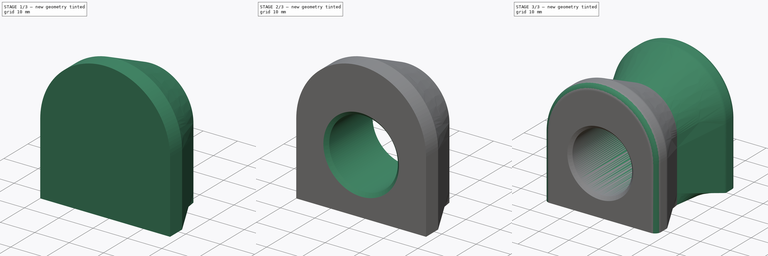
[diagram: build sequence overview — one tinted view per stage of 3, left to right]
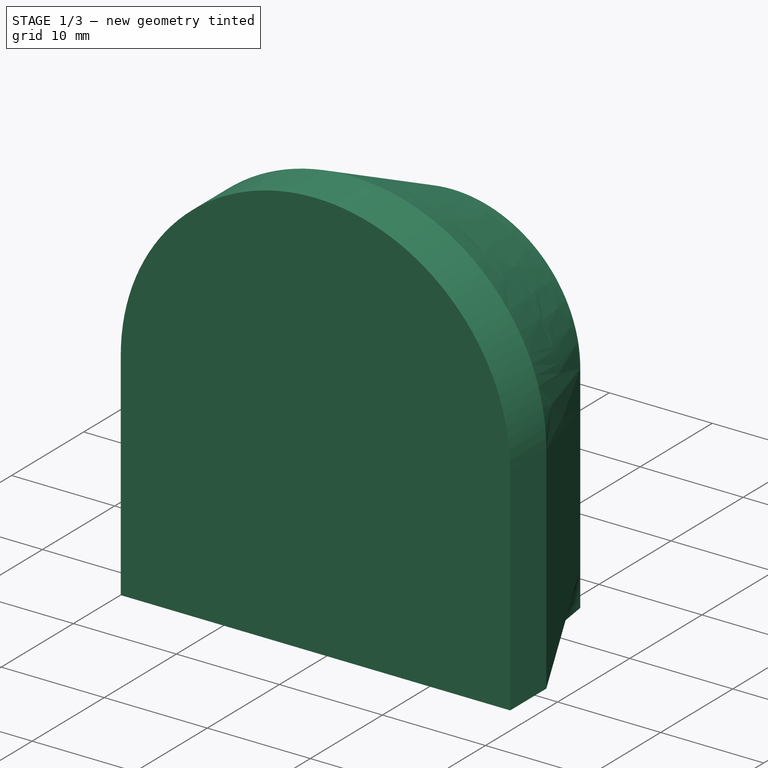
[diagram: stage 1 of 3 — iso view after this stage's code; geometry added in this stage tinted green]
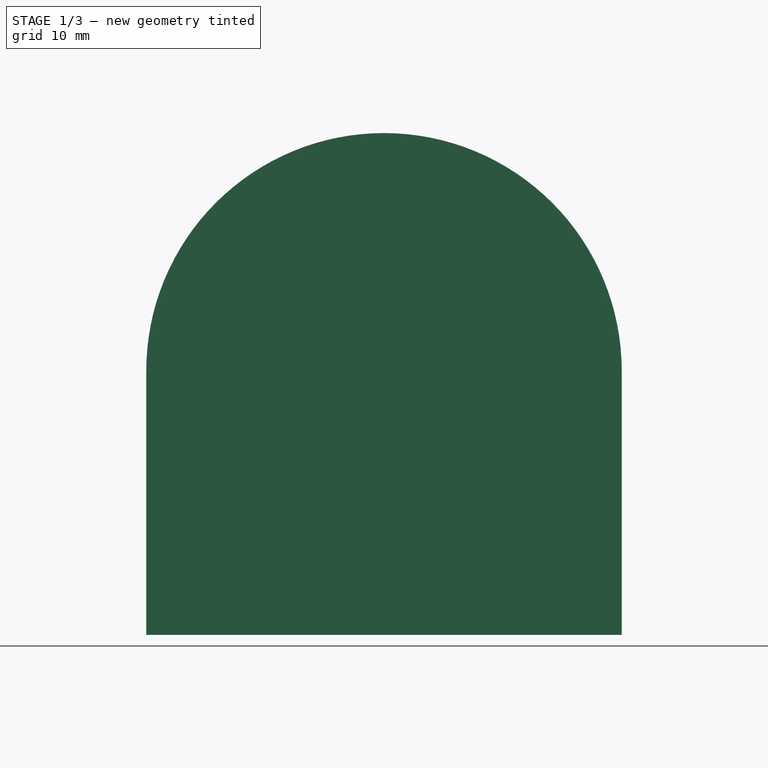
[diagram: stage 1 of 3 — front view after this stage's code; geometry added in this stage tinted green]
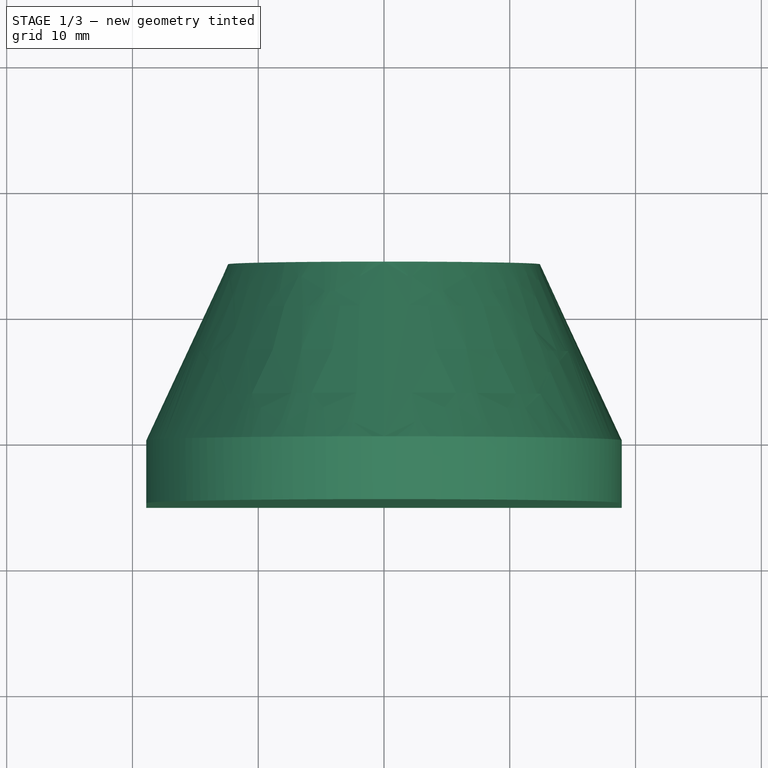
[diagram: stage 1 of 3 — top view after this stage's code; geometry added in this stage tinted green]
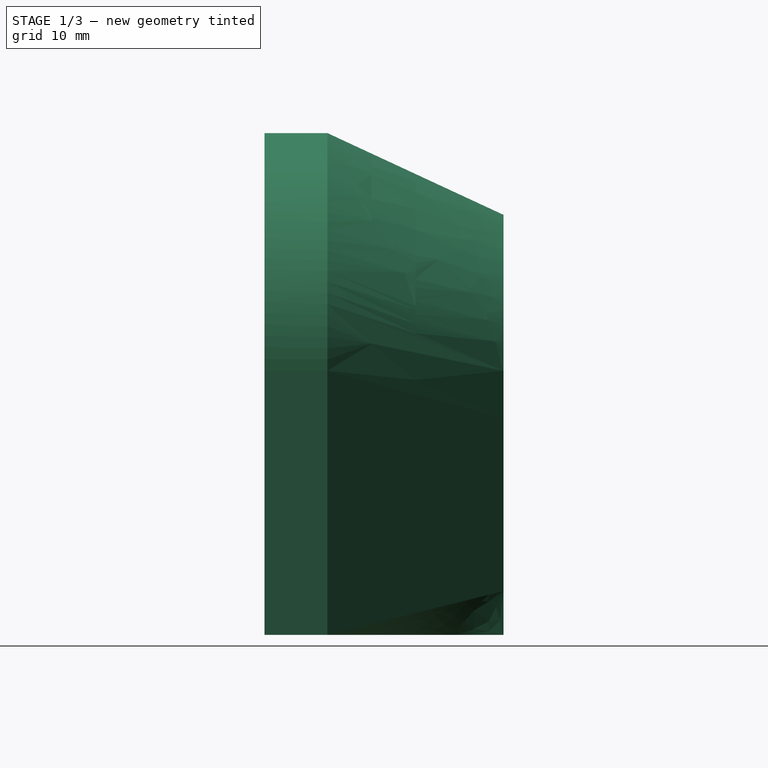
[diagram: stage 1 of 3 — right view after this stage's code; geometry added in this stage tinted green]
FCSTD DOCUMENT  (FreeCAD 1.0R39109 (Git))
Label: 14-1107-BL NIS FT SB 70-78 240,260,280Z
Comment: requires 2, also available in 16,18 and 20mm holes
License: All rights reserved
LicenseURL: https://en.wikipedia.org/wiki/All_rights_reserved
objects: Sketcher::SketchObject×3, PartDesign::Plane×2, PartDesign::Pad×1, PartDesign::AdditiveLoft×1, PartDesign::Pocket×1, PartDesign::Chamfer×1, PartDesign::Mirrored×1, PartDesign::Fillet×1, PartDesign::Body×1
note: 26 computed .brp shape members not serialized (recipe doc carries the construction recipe); baked Part::Feature solids carry a one-line shape summary decoded from their .brp

FEATURE [Sketcher::SketchObject] Sketch
  ArcFitTolerance = 1e-06
  AttachmentSupport = -> [XZ_Plane]
  FullyConstrained = false
  MakeInternals = false
  MapMode = 5
  Placement = pos=(0,0,0) rot=(1,0,0;1.5708rad)
  sketch-geometry (8):
    g0: LineSegment StartX=0 StartY=0 StartZ=0 EndX=18.9 EndY=0 EndZ=0
    g1: LineSegment StartX=18.9 StartY=0 StartZ=0 EndX=18.9 EndY=21 EndZ=0
    g2: ArcOfCircle CenterX=2.9e-15 CenterY=21 CenterZ=0 NormalX=0 NormalY=0 NormalZ=1 AngleXU=0 Radius=18.9 StartAngle=0 EndAngle=1.5708
    g3: LineSegment [constr] StartX=0 StartY=0 StartZ=0 EndX=0 EndY=39 EndZ=0
    g4: LineSegment StartX=0 StartY=0 StartZ=0 EndX=-18.9 EndY=0 EndZ=0
    g5: LineSegment StartX=-18.9 StartY=0 StartZ=0 EndX=-18.9 EndY=21 EndZ=0
    g6: ArcOfCircle CenterX=-2.9e-15 CenterY=21 CenterZ=0 NormalX=0 NormalY=0 NormalZ=1 AngleXU=0 Radius=18.9 StartAngle=1.5708 EndAngle=3.14159
    g7: LineSegment [constr] StartX=0 StartY=0 StartZ=0 EndX=4.1e-15 EndY=39.9 EndZ=0
  constraints (20):
    c: Coincident(g-1,g0)
    c: PointOnObject(g0,g-1)
    c: Coincident(g0,g1)
    c: Vertical(g1)
    c: Tangent(g1,g2) = -1.5708
    c: PointOnObject(g2,g-2)
    c: DistanceX(g0,g0) = 18.9
    c: Distance(g3) = 39
    c: Coincident(g3,g0)
    c: DistanceY(g1,g1) = 21
    c: Coincident(g4,g5)
    c: Tangent(g5,g6) = 1.5708
    c: Coincident(g7,g4)
    c: Coincident(g6,g7)
    c: Equal(g5,g1)
    c: Equal(g6,g2)
    c: Equal(g4,g0)
    c: Horizontal(g4)
    c: Coincident(g0,g4)
    c: Tangent(g2,g6) = -1.5708
FEATURE [PartDesign::Pad] Pad
  Direction = (0,-1,2e-16)
  Length = 5
  Length2 = 10
  Placement = pos=(0,0,0) rot=(1,0,0;1.5708rad)
  Profile = -> Sketch
  ReferenceAxis = -> Sketch [N_Axis]
  Refine = true
  Suppressed = false
  Type = 0
FEATURE [PartDesign::Plane] DatumPlane
  AttachmentOffset = pos=(0,0,14) rot=(0,0,1;0rad)
  AttachmentSupport = -> [Pad]
  Length = 61.393
  MapMode = 5
  Placement = pos=(0,14,3.1e-15) rot=(-1,0,0;1.5708rad)
  ResizeMode = 0
  Width = 76.293
FEATURE [Sketcher::SketchObject] Sketch001
  ArcFitTolerance = 1e-06
  AttachmentSupport = -> [DatumPlane]
  ExternalGeometry = -> [Pad]
  FullyConstrained = true
  MakeInternals = false
  MapMode = 5
  Placement = pos=(0,14,3.1e-15) rot=(-1,0,0;1.5708rad)
  sketch-geometry (7):
    g0: LineSegment [constr] StartX=-1.8e-15 StartY=-39.9 StartZ=0 EndX=0 EndY=-33.4 EndZ=0
    g1: LineSegment [constr] StartX=18.9 StartY=-21 StartZ=0 EndX=12.4 EndY=-21 EndZ=0
    g2: LineSegment [constr] StartX=-18.9 StartY=-21 StartZ=0 EndX=-12.4 EndY=-21 EndZ=0
    g3: LineSegment StartX=12.4 StartY=-21 StartZ=0 EndX=12.4 EndY=0 EndZ=0
    g4: LineSegment StartX=-12.4 StartY=-21 StartZ=0 EndX=-12.4 EndY=0 EndZ=0
    g5: LineSegment StartX=-12.4 StartY=0 StartZ=0 EndX=12.4 EndY=0 EndZ=0
    g6: ArcOfCircle CenterX=7.9e-14 CenterY=-21 CenterZ=0 NormalX=0 NormalY=0 NormalZ=1 AngleXU=0 Radius=12.4 StartAngle=3.14159 EndAngle=6.28319
  constraints (20):
    c: Distance(g0) = 6.5
    c: Coincident(g0,g-4)
    c: PointOnObject(g0,g-2)
    c: Distance(g1) = 6.5
    c: Coincident(g1,g-6)
    c: Horizontal(g1)
    c: Distance(g2) = 6.5
    c: Coincident(g2,g-5)
    c: Horizontal(g2)
    c: Coincident(g3,g1)
    c: PointOnObject(g3,g-1)
    c: Vertical(g3)
    c: Coincident(g4,g2)
    c: PointOnObject(g4,g-1)
    c: Vertical(g4)
    c: Coincident(g5,g4)
    c: Coincident(g5,g3)
    c: Coincident(g6,g2)
    c: Coincident(g6,g1)
    c: PointOnObject(g0,g6)
FEATURE [PartDesign::AdditiveLoft] AdditiveLoft
  BaseFeature = -> Pad
  Closed = false
  Placement = pos=(0,0,0) rot=(1,0,0;1.5708rad)
  Profile = -> Pad [Edge3,Edge6,Edge7,Edge8,Edge5]
  Refine = true
  Ruled = true
  Sections = -> [Sketch001]
  Suppressed = false
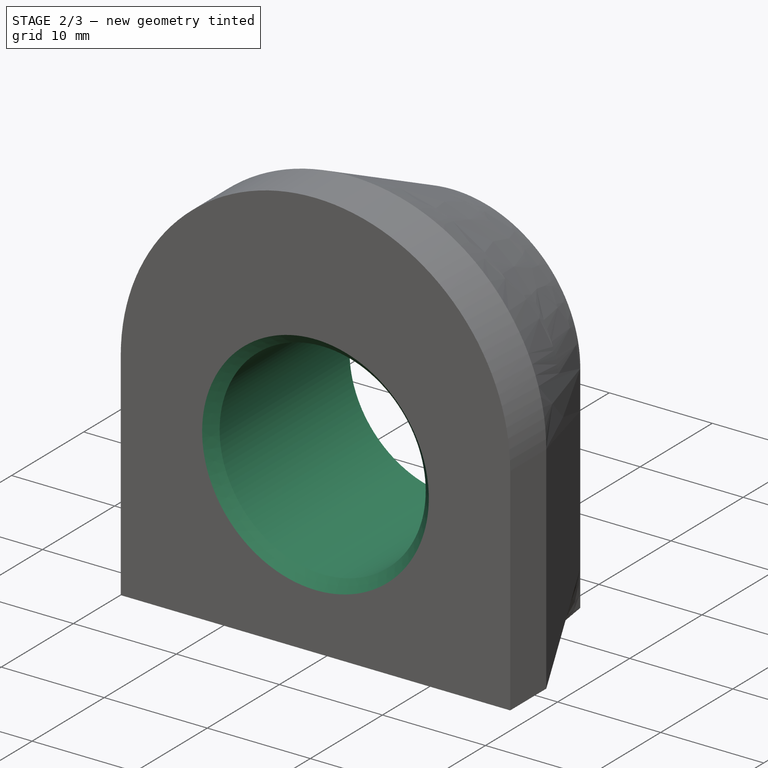
[diagram: stage 2 of 3 — iso view after this stage's code; geometry added in this stage tinted green]
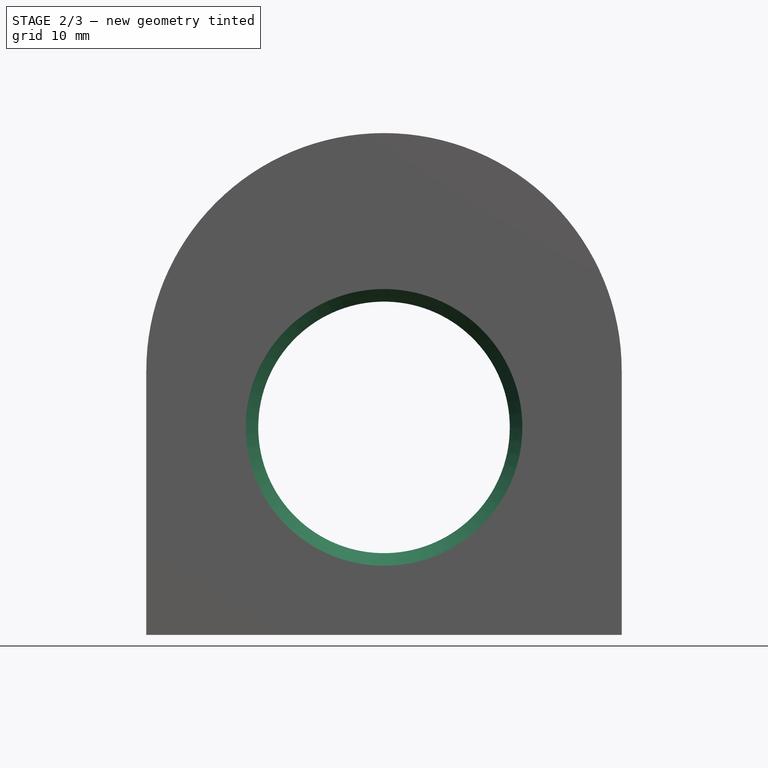
[diagram: stage 2 of 3 — front view after this stage's code; geometry added in this stage tinted green]
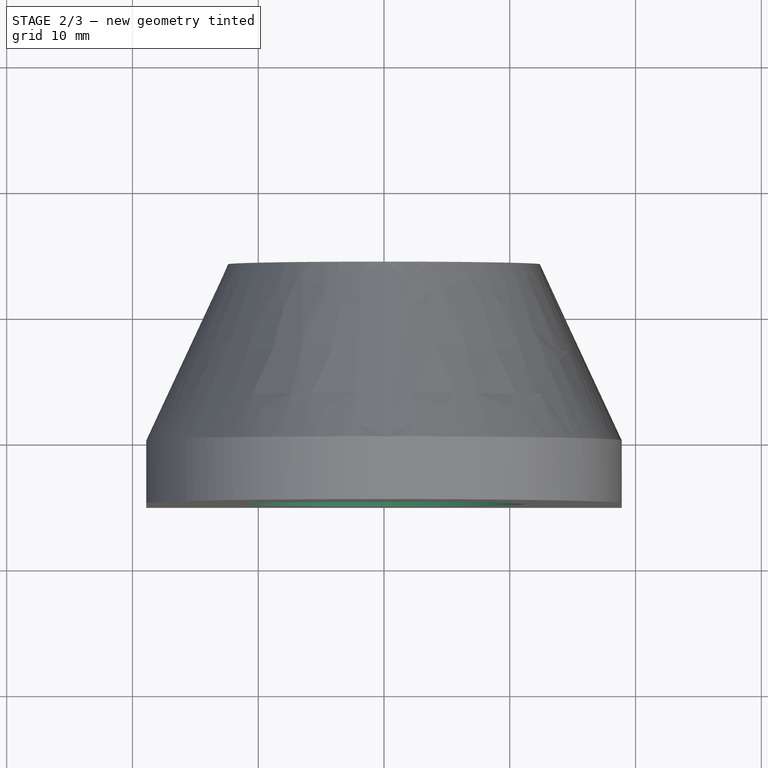
[diagram: stage 2 of 3 — top view after this stage's code; geometry added in this stage tinted green]
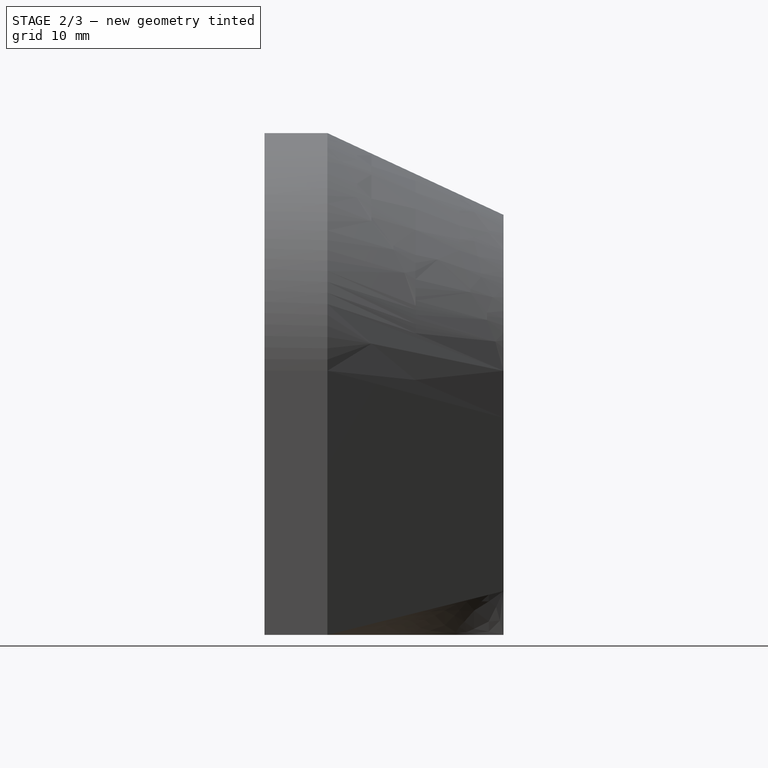
[diagram: stage 2 of 3 — right view after this stage's code; geometry added in this stage tinted green]
FEATURE [Sketcher::SketchObject] Sketch002
  ArcFitTolerance = 1e-06
  AttachmentSupport = -> [AdditiveLoft]
  FullyConstrained = true
  MakeInternals = false
  MapMode = 5
  Placement = pos=(0,-5,0) rot=(1,0,0;1.5708rad)
  sketch-geometry (3):
    g0: LineSegment [constr] StartX=0 StartY=0 StartZ=0 EndX=0 EndY=6.5 EndZ=0
    g1: LineSegment [constr] StartX=0 StartY=6.5 StartZ=0 EndX=0 EndY=16.5 EndZ=0
    g2: Circle CenterX=0 CenterY=16.5 CenterZ=0 NormalX=0 NormalY=0 NormalZ=1 AngleXU=0 Radius=10
  constraints (8):
    c: Distance(g0) = 6.5
    c: Coincident(g0,g-1)
    c: PointOnObject(g0,g-2)
    c: Distance(g1) = 10
    c: Coincident(g1,g0)
    c: PointOnObject(g1,g-2)
    c: Diameter(g2) = 20
    c: Coincident(g2,g1)
FEATURE [PartDesign::Pocket] Pocket
  BaseFeature = -> AdditiveLoft
  Direction = (0,1,-2e-16)
  Length = 5
  Length2 = 5
  Placement = pos=(0,0,0) rot=(1,0,0;1.5708rad)
  Profile = -> Sketch002
  ReferenceAxis = -> Sketch002 [N_Axis]
  Refine = true
  Suppressed = false
  Type = 1
FEATURE [PartDesign::Chamfer] Chamfer
  Angle = 45
  Base = -> Pocket [Edge21]
  BaseFeature = -> Pocket
  ChamferType = 0
  FlipDirection = false
  Placement = pos=(0,0,0) rot=(1,0,0;1.5708rad)
  Refine = true
  Size = 1
  Size2 = 1
  SupportTransform = false
  Suppressed = false
  UseAllEdges = false
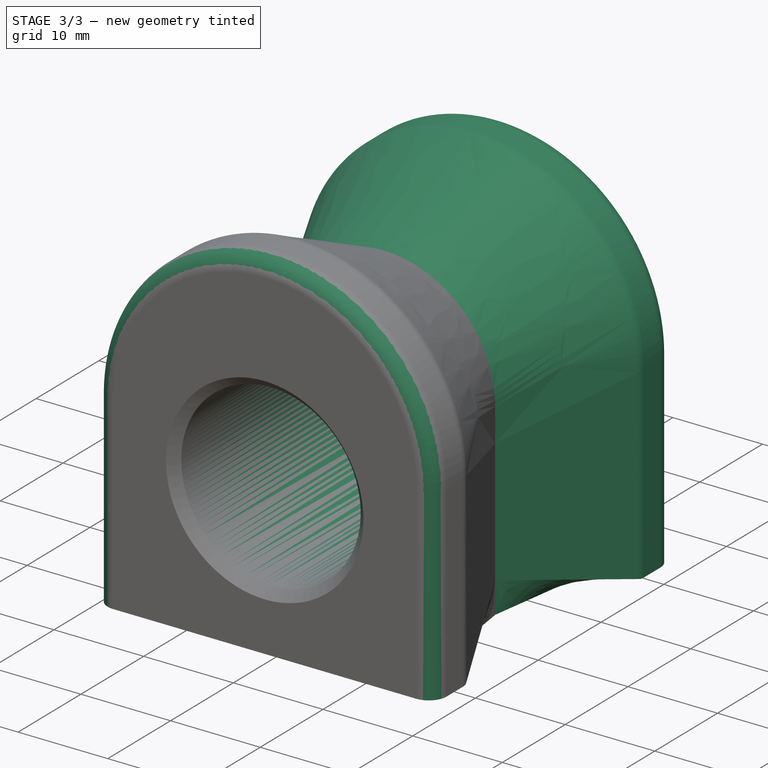
[diagram: stage 3 of 3 — iso view after this stage's code; geometry added in this stage tinted green]
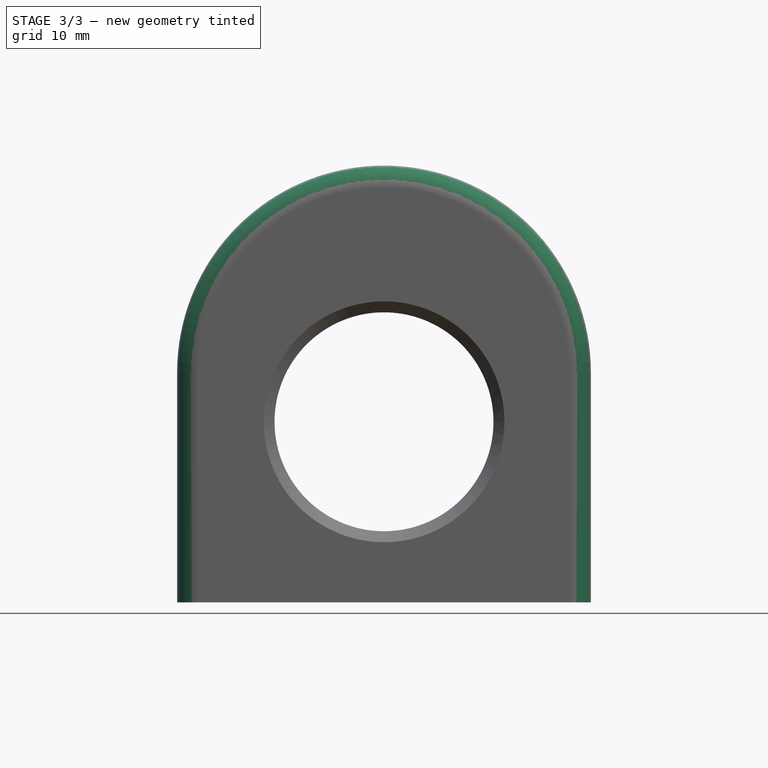
[diagram: stage 3 of 3 — front view after this stage's code; geometry added in this stage tinted green]
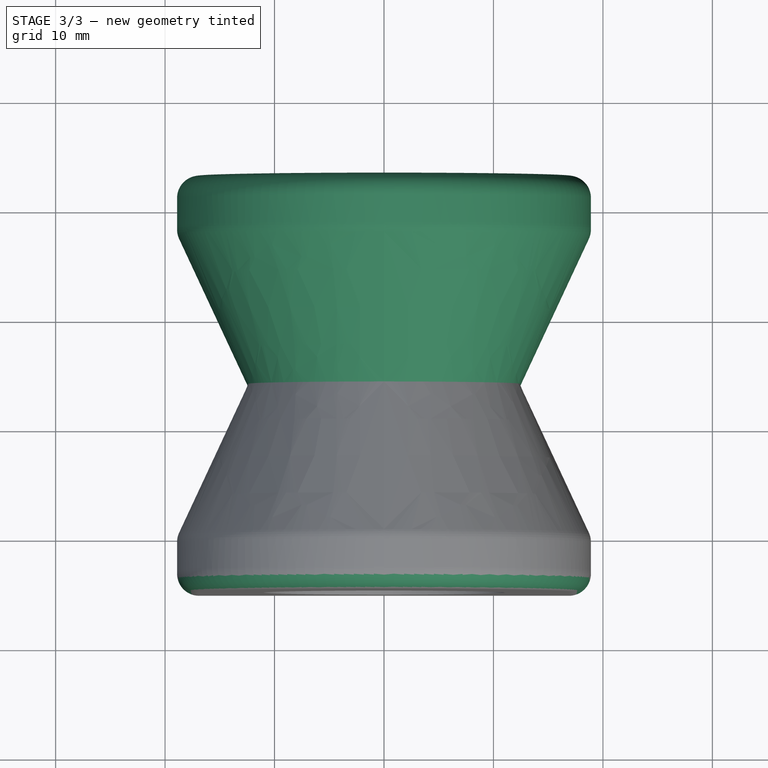
[diagram: stage 3 of 3 — top view after this stage's code; geometry added in this stage tinted green]
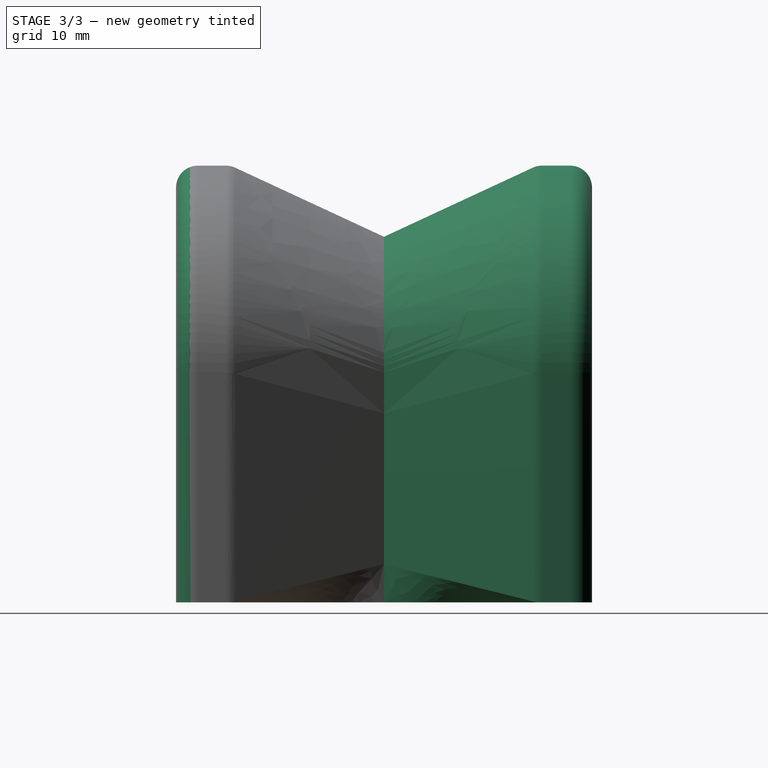
[diagram: stage 3 of 3 — right view after this stage's code; geometry added in this stage tinted green]
FEATURE [PartDesign::Plane] DatumPlane001
  AttachmentSupport = -> [Chamfer]
  Length = 61.393
  MapMode = 5
  Placement = pos=(0,14,3.1e-15) rot=(-1,0,0;1.5708rad)
  ResizeMode = 0
  Width = 76.293
FEATURE [PartDesign::Mirrored] Mirrored
  BaseFeature = -> Chamfer
  MirrorPlane = -> DatumPlane001
  Originals = -> [Chamfer]
  Placement = pos=(0,0,0) rot=(1,0,0;1.5708rad)
  Refine = true
  Suppressed = false
  TransformMode = 1
FEATURE [PartDesign::Fillet] Fillet
  Base = -> Mirrored [Face7,Face29]
  BaseFeature = -> Mirrored
  Placement = pos=(0,0,0) rot=(1,0,0;1.5708rad)
  Radius = 2
  Refine = true
  SupportTransform = false
  Suppressed = false
  UseAllEdges = false
FEATURE [PartDesign::Body] Body  label="Bushing"
  AllowCompound = false
  Group = -> [Sketch,Pad,DatumPlane,Sketch001,AdditiveLoft,Sketch002,Pocket,Chamfer,DatumPlane001,Mirrored,Fillet]
  Origin = -> Origin
  Tip = -> Fillet
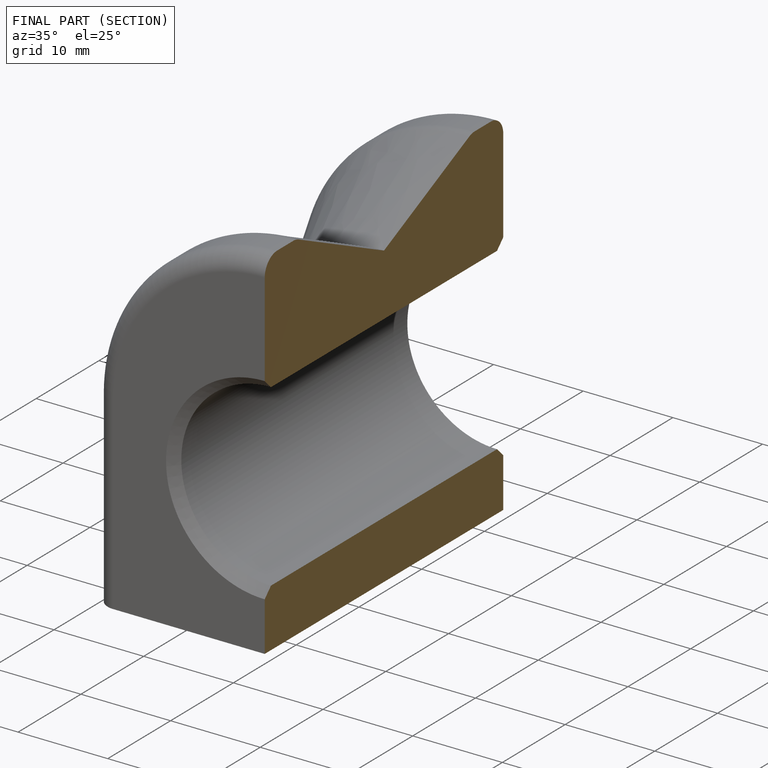
[diagram: finished part — half-section view (interior)]
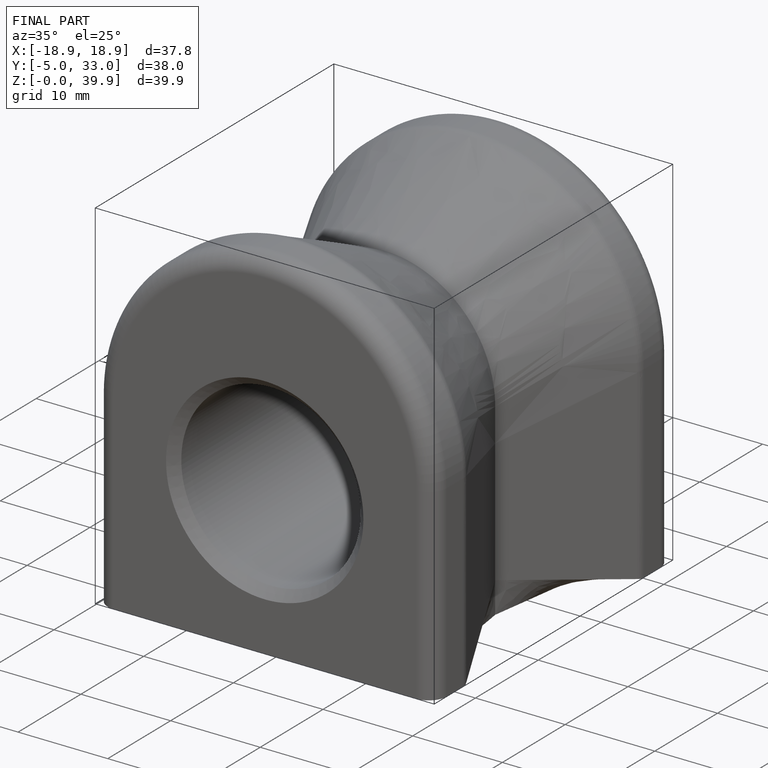
[diagram: finished part — iso view with bounding-box wireframe]
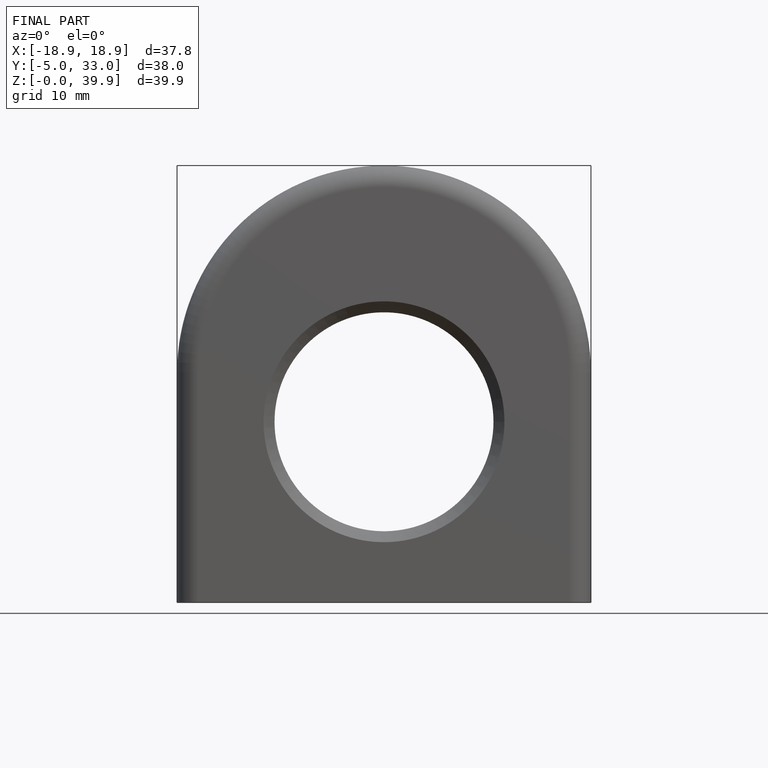
[diagram: finished part — front view with bounding-box wireframe]
